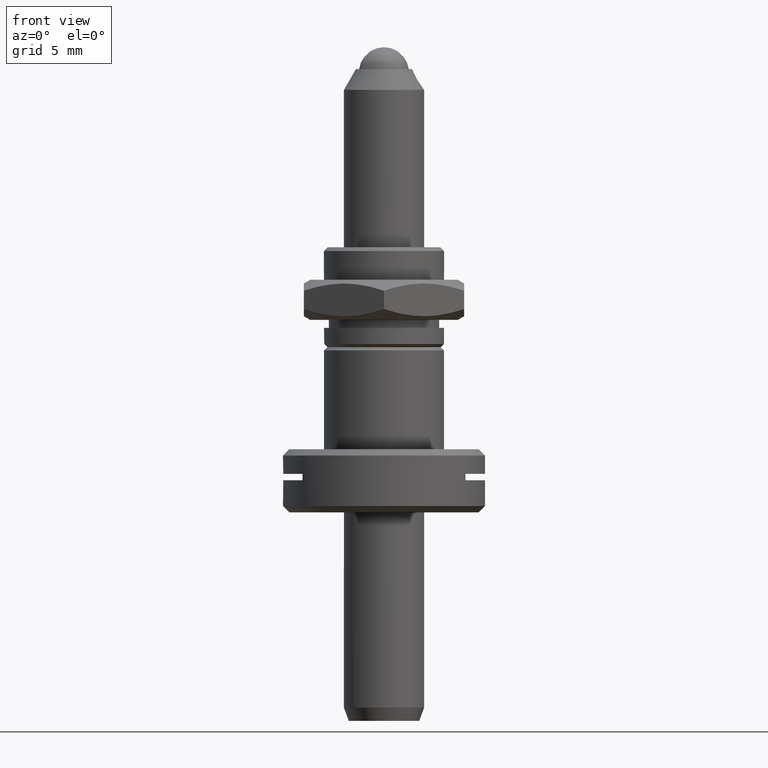
[diagram: clean part render]
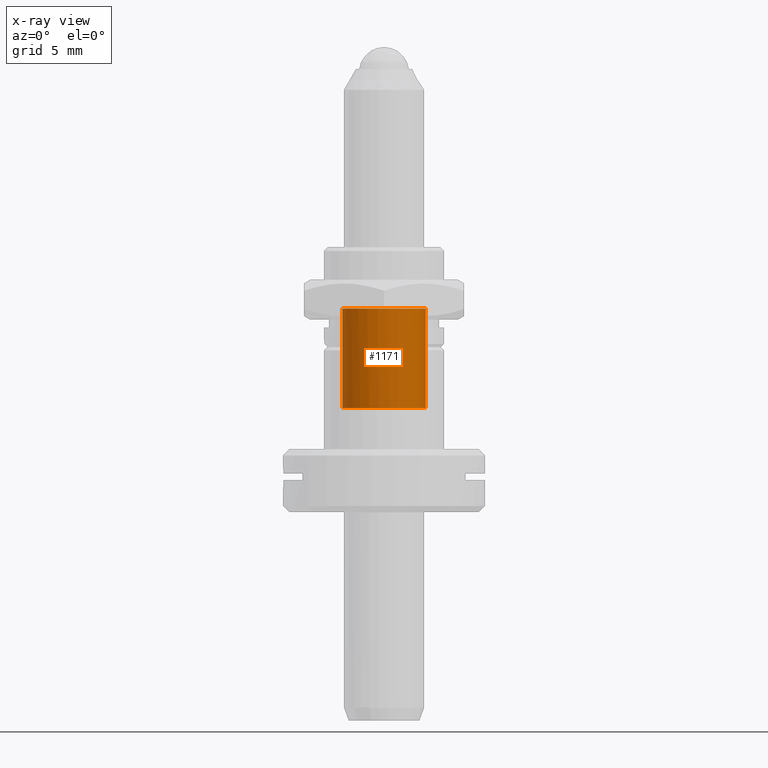
[diagram: x-ray — body ghosted, one internal face saturated and labeled with its STEP entity id]
A machine part, front view, then the same camera in x-ray: the body is ghosted and one INTERNAL B-rep face — a face not visible from any outside direction — is saturated and labeled: STEP entity #1171.
In plain terms, the highlighted cylindrical surface (bore or boss wall) has radius 3.302 mm, axis along (0, 0, 1).
Its self-contained STEP definition (entity closure, byte-faithful):
#45 = DIRECTION ( 'NONE',  ( 1.000000000000000000, 0.000000000000000000, 0.000000000000000000 ) ) ;
#282 = VERTEX_POINT ( 'NONE', #2004 ) ;
#289 = CARTESIAN_POINT ( 'NONE',  ( 0.000000000000000000, 0.000000000000000000, -20.70099999999999696 ) ) ;
#432 = ORIENTED_EDGE ( 'NONE', *, *, #2408, .F. ) ;
#466 = CARTESIAN_POINT ( 'NONE',  ( 0.000000000000000000, 0.000000000000000000, -9.000471734039580340 ) ) ;
#654 = FACE_OUTER_BOUND ( 'NONE', #2292, .T. ) ;
#731 = AXIS2_PLACEMENT_3D ( 'NONE', #2461, #1130, #2253 ) ;
#970 = EDGE_CURVE ( 'NONE', #1164, #1164, #1666, .T. ) ;
#1071 = DIRECTION ( 'NONE',  ( -0.000000000000000000, -0.000000000000000000, -1.000000000000000000 ) ) ;
#1130 = DIRECTION ( 'NONE',  ( 0.000000000000000000, 0.000000000000000000, 1.000000000000000000 ) ) ;
#1164 = VERTEX_POINT ( 'NONE', #1936 ) ;
#1171 = ADVANCED_FACE ( 'NONE', ( #654, #1461 ), #2204, .F. ) ;
#1238 = DIRECTION ( 'NONE',  ( 0.000000000000000000, 0.000000000000000000, 1.000000000000000000 ) ) ;
#1461 = FACE_OUTER_BOUND ( 'NONE', #1819, .T. ) ;
#1476 = ORIENTED_EDGE ( 'NONE', *, *, #970, .F. ) ;
#1505 = CIRCLE ( 'NONE', #731, 3.301999999999999602 ) ;
#1666 = CIRCLE ( 'NONE', #2317, 3.301999999999999602 ) ;
#1759 = AXIS2_PLACEMENT_3D ( 'NONE', #466, #1238, #1899 ) ;
#1819 = EDGE_LOOP ( 'NONE', ( #1476 ) ) ;
#1899 = DIRECTION ( 'NONE',  ( 1.000000000000000000, 0.000000000000000000, 0.000000000000000000 ) ) ;
#1936 = CARTESIAN_POINT ( 'NONE',  ( 3.301999999999999602, 0.000000000000000000, -20.70099999999999696 ) ) ;
#2004 = CARTESIAN_POINT ( 'NONE',  ( 3.301999999999999602, 0.000000000000000000, -28.57500000000000284 ) ) ;
#2204 = CYLINDRICAL_SURFACE ( 'NONE', #1759, 3.301999999999999602 ) ;
#2253 = DIRECTION ( 'NONE',  ( 1.000000000000000000, 0.000000000000000000, 0.000000000000000000 ) ) ;
#2292 = EDGE_LOOP ( 'NONE', ( #432 ) ) ;
#2317 = AXIS2_PLACEMENT_3D ( 'NONE', #289, #1071, #45 ) ;
#2408 = EDGE_CURVE ( 'NONE', #282, #282, #1505, .T. ) ;
#2461 = CARTESIAN_POINT ( 'NONE',  ( 0.000000000000000000, 0.000000000000000000, -28.57500000000000284 ) ) ;